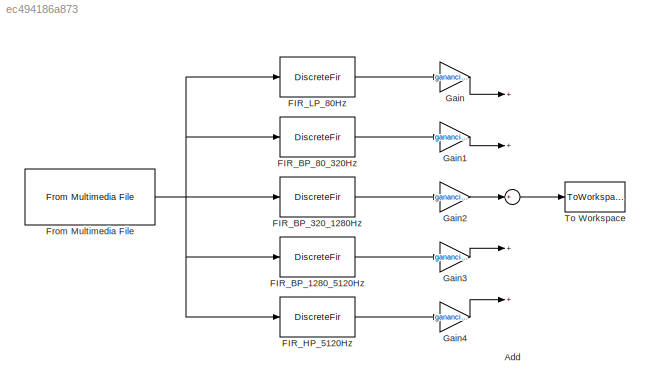
MODEL slx_ec494186a873
KIND model
CONFIG AbsTol = auto
CONFIG EnableMultiTasking = off
CONFIG FixedStep = auto
CONFIG MaxStep = auto
CONFIG MinStep = auto
CONFIG RelTol = 1e-3
CONFIG SampleTimeConstraint = Unconstrained
CONFIG Solver = VariableStepAuto
CONFIG SolverName = VariableStepAuto
CONFIG StartTime = 0.0
CONFIG StopTime = 3
BLOCK [Sum] Add
  InputSameDT = off
  Inputs = +++++
  OutDataTypeStr = Inherit: Inherit via internal rule
  Ports = [5, 1]
  SaturateOnIntegerOverflow = off
BLOCK [DiscreteFir] FIR_BP_1280_5120Hz
  Coefficients = [-6.33540936235722367e-05 0.00195654270160462588 -4.01545452605399819e-05 0.00212945592350992276 -0.00285797352861382739 0.000192733862020878858 -0.00635868238869501546 0.00104177495203475841 -0.00246690417021121124 0.00822982232945761866 0.00663127303390260558 0.00720161481872818015 0.0036235549914843063 -0.0160254810773749479 -0.00644133758605169252 -0.0354313467654868985 0.0162538806667236642 -...<+780ch>
  InputPortMap = u0
  InputProcessing = Columns as channels (frame based)
  OutputPortMap = o0
  Ports = [1, 1]
  SampleTime = ts
  Tag = BlockMethodSubSystem
BLOCK [DiscreteFir] FIR_BP_320_1280Hz
  Coefficients = [0.000419942512208930948 -3.28988295900055057e-05 -1.08715141066685234e-05 0.000698158881007576726 0.00209982001039358494 0.00368828009137740862 0.00437745590019822991 0.00294020690183505054 -0.00112851569328516698 -0.00684304173297955315 -0.0117374599789034622 -0.0130100060708184962 -0.00942737497665724691 -0.00291200710251219696 0.00142417065446380302 -0.00261072713857117382 -0.01867160756253212...<+782ch>
  InputPortMap = u0
  InputProcessing = Columns as channels (frame based)
  OutputPortMap = o0
  Ports = [1, 1]
  SampleTime = ts
  Tag = BlockMethodSubSystem
BLOCK [DiscreteFir] FIR_BP_80_320Hz
  Coefficients = [-0.00334531967217268104 -0.00351971885205419914 -0.00392813756457967289 -0.00452322525656722024 -0.00521978418872912249 -0.00589804359324740384 -0.00641026710657543238 -0.00659034250564381838 -0.00626574065394652508 -0.00527100932474330788 -0.00346180649641677574 -0.00072839160035881507 0.00299250896620734379 0.00770846163075225316 0.0133655445192406037 0.0198466230531161025 0.0269739906190492561...<+773ch>
  InputPortMap = u0
  InputProcessing = Columns as channels (frame based)
  OutputPortMap = o0
  Ports = [1, 1]
  SampleTime = ts
  Tag = BlockMethodSubSystem
BLOCK [DiscreteFir] FIR_HP_5120Hz
  Coefficients = [0.000648812761299368836 -0.000878383034572156819 0.00118621412166401837 -0.00158874360279032687 0.00207370969390318662 -0.00259433790109791802 0.00306729493039224104 -0.00337501186142079648 0.00337252739331047723 -0.00289851122739075671 0.00178964882312739808 0.000102846325584098864 -0.00289613146419001859 0.00665974099465227714 -0.011402386565635159 0.0170630529167427672 -0.0235075474141580656 0...<+769ch>
  InputPortMap = u0
  InputProcessing = Columns as channels (frame based)
  OutputPortMap = o0
  Ports = [1, 1]
  SampleTime = ts
  Tag = BlockMethodSubSystem
BLOCK [DiscreteFir] FIR_LP_80Hz
  Coefficients = [0.00243875513785524016 0.002597139754945806 0.00298564026125039232 0.00361008381188816004 0.0044714984030764281 0.00556597304821202388 0.00688462524133961942 0.00841367810096847052 0.0101346470421464097 0.0120246332572812222 0.0140567187587707591 0.0162004553108716746 0.0184224373141124685 0.0206869466590471791 0.0229566557883360417 0.0251933737417906894 0.0273588188454260556 0.029415400971579651...<+725ch>
  InputPortMap = u0
  InputProcessing = Columns as channels (frame based)
  OutputPortMap = o0
  Ports = [1, 1]
  SampleTime = ts
  Tag = BlockMethodSubSystem
BLOCK [Reference] From Multimedia File  REF=dspvision/From Multimedia File
  Ports = [0, 1]
  SourceBlock = dspvision/From Multimedia File
  SourceProductBaseCode = VP
  SourceProductName = Computer Vision System Toolbox
  SourceType = From Multimedia File
BLOCK [Gain] Gain
  Gain = ganancia(1)
  OutDataTypeStr = Inherit: Inherit via internal rule
  ParamDataTypeStr = Inherit: Inherit via internal rule
  SaturateOnIntegerOverflow = off
BLOCK [Gain] Gain1
  Gain = ganancia(2)
  OutDataTypeStr = Inherit: Inherit via internal rule
  ParamDataTypeStr = Inherit: Inherit via internal rule
  SaturateOnIntegerOverflow = off
BLOCK [Gain] Gain2
  Gain = ganancia(3)
  OutDataTypeStr = Inherit: Inherit via internal rule
  ParamDataTypeStr = Inherit: Inherit via internal rule
  SaturateOnIntegerOverflow = off
BLOCK [Gain] Gain3
  Gain = ganancia(4)
  OutDataTypeStr = Inherit: Inherit via internal rule
  ParamDataTypeStr = Inherit: Inherit via internal rule
  SaturateOnIntegerOverflow = off
BLOCK [Gain] Gain4
  Gain = ganancia(5)
  OutDataTypeStr = Inherit: Inherit via internal rule
  ParamDataTypeStr = Inherit: Inherit via internal rule
  SaturateOnIntegerOverflow = off
BLOCK [ToWorkspace] To Workspace
  MaxDataPoints = inf
  Ports = [1]
  SampleTime = -1
  Save2DSignal = 3-D array (concatenate along third dimension)
  SaveFormat = Timeseries
  VariableName = Salida
LINE Add:1 -> To Workspace:1
LINE FIR_BP_1280_5120Hz:1 -> Gain3:1
LINE FIR_BP_320_1280Hz:1 -> Gain2:1
LINE FIR_BP_80_320Hz:1 -> Gain1:1
LINE FIR_HP_5120Hz:1 -> Gain4:1
LINE FIR_LP_80Hz:1 -> Gain:1
NET From Multimedia File:1 -> FIR_BP_1280_5120Hz:1, FIR_BP_320_1280Hz:1, FIR_BP_80_320Hz:1, FIR_HP_5120Hz:1, FIR_LP_80Hz:1
LINE Gain1:1 -> Add:2
LINE Gain2:1 -> Add:3
LINE Gain3:1 -> Add:4
LINE Gain4:1 -> Add:5
LINE Gain:1 -> Add:1
note: NET lines group one-source signal fan-out (src -> all destinations, sorted); 1:1 wires keep LINE
